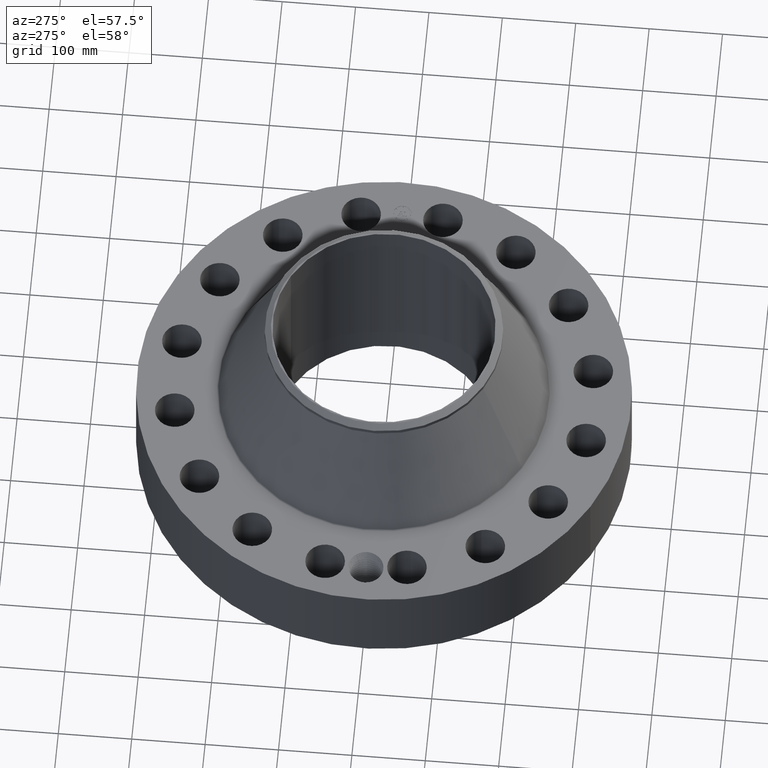
[diagram: clean part render]
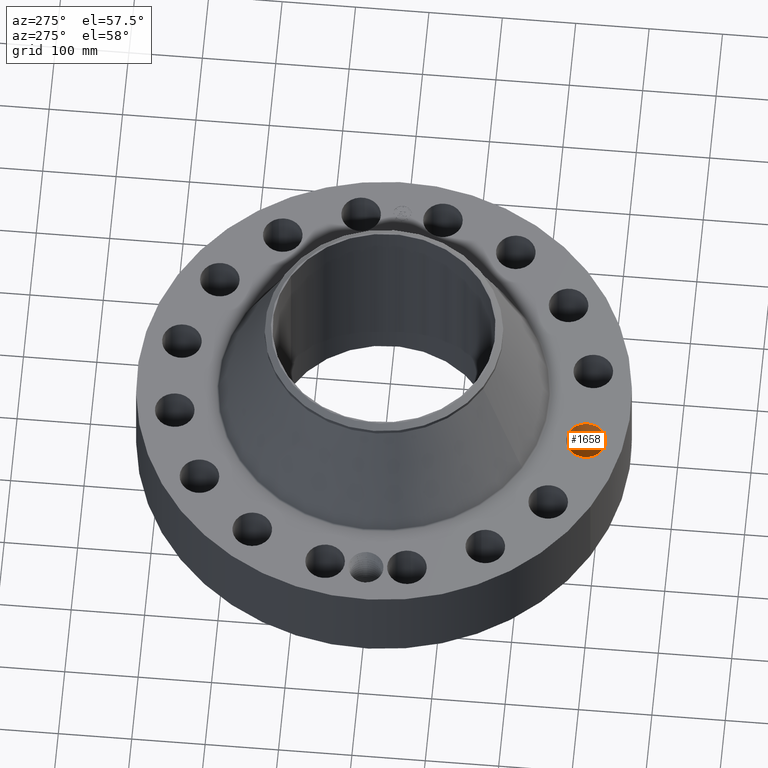
[diagram: same view with one face highlighted and labeled with its STEP entity id]
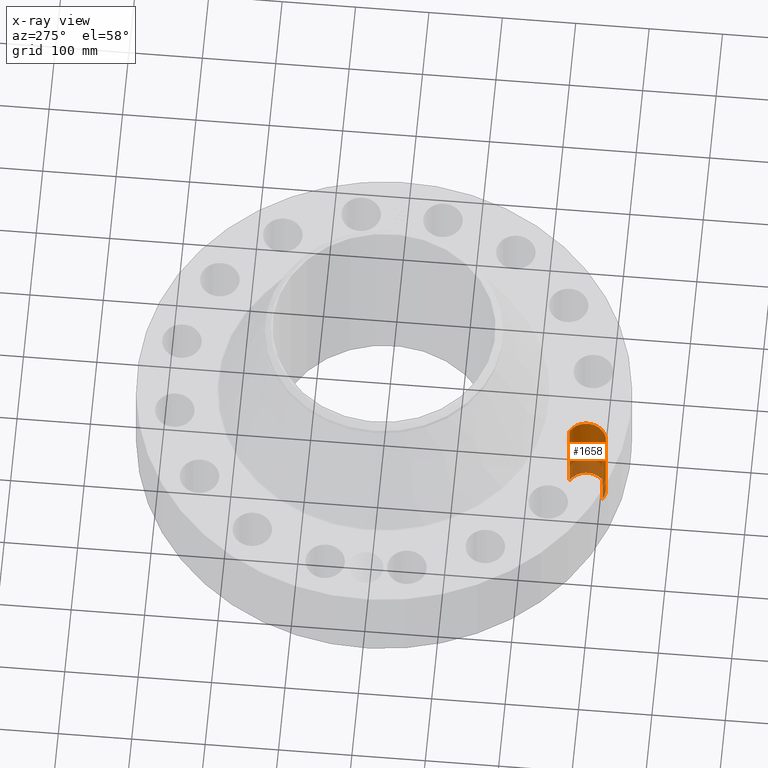
[diagram: x-ray of the same camera — body ghosted, the highlighted face saturated]
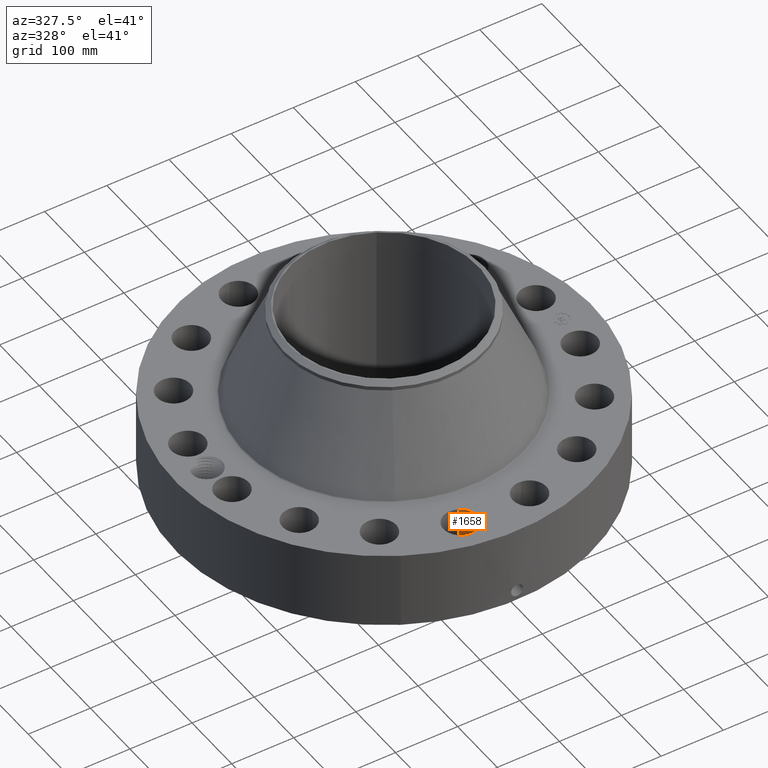
[diagram: same view with one face highlighted and labeled with its STEP entity id]
A machine part, auxiliary view. The second image highlights one B-rep face of the part: STEP entity #1658.
The next image is the same camera in x-ray: the body ghosted, the highlighted face saturated — about 28% of this face is hidden behind the body in this view.
A second angle (auxiliary view) of the same face is appended — the face is thin or edge-on in the first view.
In plain terms, the highlighted cylindrical surface (edge-blend (fillet) strip) has radius 26.924 mm, axis along (0, -0, -1).
Its self-contained STEP definition (entity closure, byte-faithful):
#334=AXIS2_PLACEMENT_3D('Circle Axis2P3D',#332,#333,$) ;
#816=AXIS2_PLACEMENT_3D('Circle Axis2P3D',#814,#815,$) ;
#1640=AXIS2_PLACEMENT_3D('Cylinder Axis2P3D',#1637,#1638,#1639) ;
#332=CARTESIAN_POINT('Axis2P3D Location',(-2.19476612269,-11.0338344046,0.250000000001)) ;
#336=CARTESIAN_POINT('Vertex',(-1.68657505177,-10.103596889,0.250000000001)) ;
#338=CARTESIAN_POINT('Vertex',(-2.70295719361,-11.9640719202,0.250000000001)) ;
#809=CARTESIAN_POINT('Vertex',(-2.70295719361,-11.9640719202,5.13000000002)) ;
#811=CARTESIAN_POINT('Vertex',(-1.68657505177,-10.103596889,5.13000000002)) ;
#814=CARTESIAN_POINT('Axis2P3D Location',(-2.19476612269,-11.0338344046,5.13000000002)) ;
#1637=CARTESIAN_POINT('Axis2P3D Location',(-2.19476612269,-11.0338344046,5.12606299215)) ;
#1642=CARTESIAN_POINT('Line Origine',(-1.68657505177,-10.103596889,2.69000000001)) ;
#1647=CARTESIAN_POINT('Line Origine',(-2.70295719361,-11.9640719202,2.69000000001)) ;
#333=DIRECTION('Axis2P3D Direction',(0.,0.,-0.0393700787402)) ;
#815=DIRECTION('Axis2P3D Direction',(0.,0.,-0.0393700787402)) ;
#1638=DIRECTION('Axis2P3D Direction',(0.,-0.,-0.0393700787402)) ;
#1639=DIRECTION('Axis2P3D XDirection',(-0.0188750212049,-0.0345504945626,0.)) ;
#1643=DIRECTION('Vector Direction',(0.,0.,-0.0393700787402)) ;
#1648=DIRECTION('Vector Direction',(0.,0.,-0.0393700787402)) ;
#1644=VECTOR('Line Direction',#1643,0.0393700787402) ;
#1649=VECTOR('Line Direction',#1648,0.0393700787402) ;
#1653=ORIENTED_EDGE('',*,*,#1646,.F.) ;
#1654=ORIENTED_EDGE('',*,*,#340,.T.) ;
#1655=ORIENTED_EDGE('',*,*,#1651,.T.) ;
#1656=ORIENTED_EDGE('',*,*,#818,.F.) ;
#1658=ADVANCED_FACE('PartBody',(#1657),#1641,.F.) ;
#335=CIRCLE('generated circle',#334,1.06) ;
#817=CIRCLE('generated circle',#816,1.06) ;
#1641=CYLINDRICAL_SURFACE('generated cylinder',#1640,1.06) ;
#340=EDGE_CURVE('',#337,#339,#335,.T.) ;
#818=EDGE_CURVE('',#812,#810,#817,.T.) ;
#1646=EDGE_CURVE('',#337,#812,#1645,.F.) ;
#1651=EDGE_CURVE('',#339,#810,#1650,.F.) ;
#1652=EDGE_LOOP('',(#1653,#1654,#1655,#1656)) ;
#1657=FACE_OUTER_BOUND('',#1652,.T.) ;
#1645=LINE('Line',#1642,#1644) ;
#1650=LINE('Line',#1647,#1649) ;
#337=VERTEX_POINT('',#336) ;
#339=VERTEX_POINT('',#338) ;
#810=VERTEX_POINT('',#809) ;
#812=VERTEX_POINT('',#811) ;